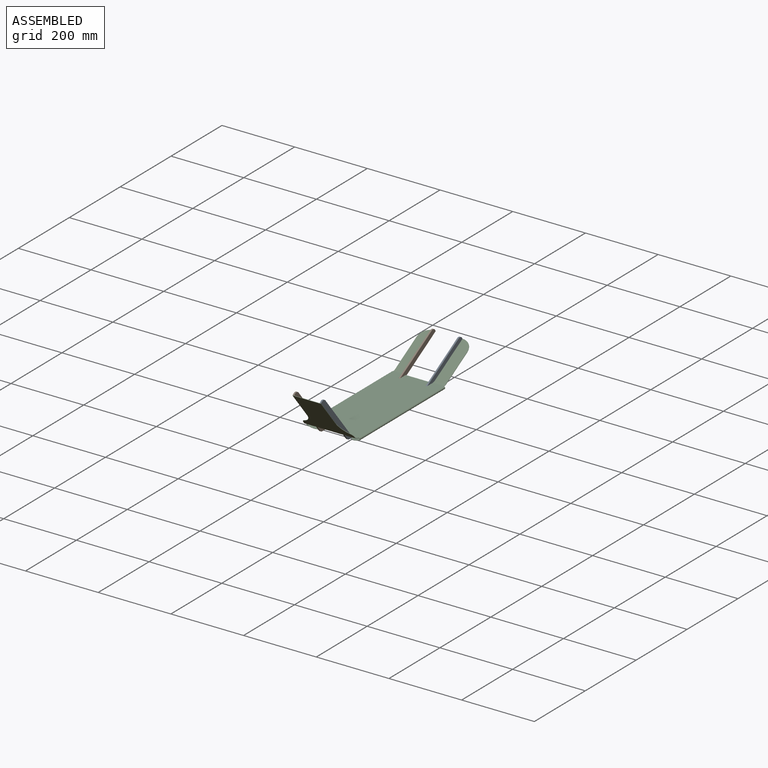
[diagram: assembled view]
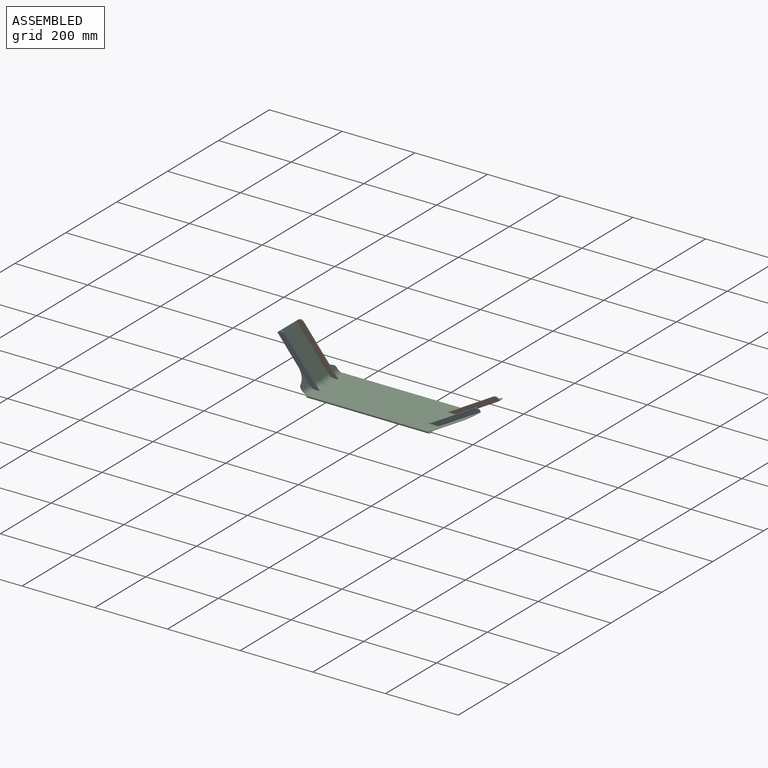
[diagram: assembled view, second angle]
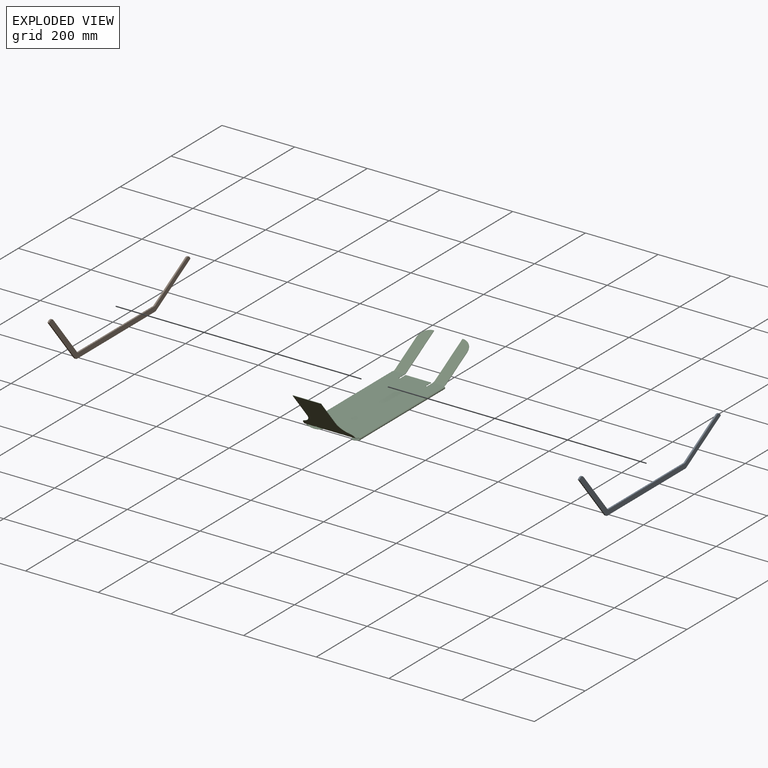
[diagram: exploded view]
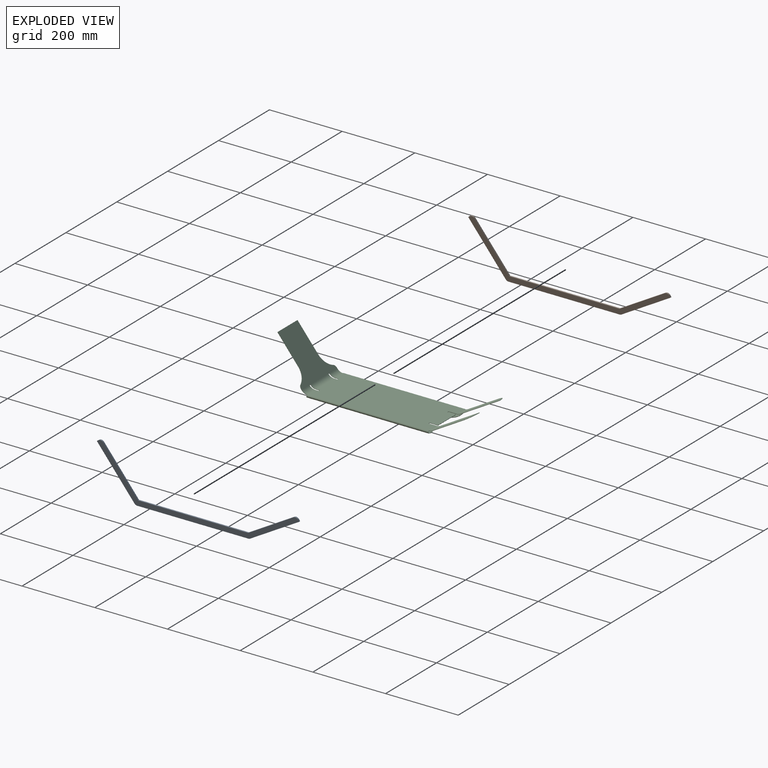
[diagram: exploded view, second angle]
ASSEMBLY  parts=3 mates=2
PART A: 14 faces, bbox 4x556.2x135.9 mm
  f0: plane 305.68x4mm, normal (0,0,-1), area 1222.7mm2, adj f1,f11,f12,f13
  f1: cylinder r=10mm len=5mm, axis (-1,0,0), area 20.9mm2, adj f0,f2,f12,f13
  f2: plane 134.51x77.66mm, normal (0,0.5,-0.87), area 621.3mm2, adj f1,f3,f12,f13
  f3: plane 4x3.46mm, normal (0,0.87,0.5), area 16mm2, adj f2,f4,f12,f13
  f4: cylinder r=10mm len=13.66mm, axis (-1,0,0), area 62.8mm2, adj f3,f5,f12,f13
  f5: plane 124.92x72.12mm, normal (0,-0.5,0.87), area 577mm2, adj f4,f6,f12,f13
  f6: plane 302.7x4mm, normal (0,0,1), area 1210.8mm2, adj f5,f7,f12,f13
  f7: plane 118.24x95.75mm, normal (0,0.78,0.63), area 608.6mm2, adj f6,f8,f12,f13
  f8: cylinder r=10mm len=14.06mm, axis (-1,0,0), area 62.8mm2, adj f7,f9,f12,f13
  f9: plane 4x3.11mm, normal (0,-0.63,0.78), area 16mm2, adj f8,f10,f12,f13
  f10: plane 127.49x103.24mm, normal (0,-0.78,-0.63), area 656.2mm2, adj f9,f11,f12,f13
  f11: cylinder r=10mm len=7.77mm, axis (-1,0,0), area 35.6mm2, adj f0,f10,f12,f13
  f12: plane 556.2x135.95mm, normal (1,0,0), area 8766.6mm2, adj f0,f1,f2,f3,f4,f5,f6,f7
  f13: plane 556.2x135.95mm, normal (-1,0,0), area 8766.6mm2, adj f0,f1,f2,f3,f4,f5,f6,f7
PART B: same geometry as A
PART C: 66 faces, bbox 147x557x131.2 mm
  f0: plane 78x0.78mm, normal (0,-0.63,0.78), area 78mm2, adj f5,f6,f62,f63
  f1: cylinder r=20mm len=70mm, axis (-1,0,0), area 1246.2mm2, adj f5,f12,f46,f51
  f2: cylinder r=20mm len=31mm, axis (-1,0,0), area 551.9mm2, adj f5,f12,f19,f47
  f3: cylinder r=20mm len=31mm, axis (-1,0,0), area 551.9mm2, adj f4,f5,f12,f50
  f4: plane 17.4x10.34mm, normal (-1,0,0), area 20.3mm2, adj f3,f5,f6,f25,f33,f65
  f5: plane 140x109.16mm, normal (0,-0.78,-0.63), area 12212.7mm2, adj f0,f1,f2,f3,f4,f19,f58,f59
  f6: plane 140x109.16mm, normal (0,0.78,0.63), area 12212.7mm2, adj f0,f4,f13,f18,f19,f25,f58,f59
  f7: plane 335.1x140mm, normal (0,0,1), area 46655mm2, adj f8,f13,f17,f18,f24,f25,f31,f37
  f8: plane 22.64x1mm, normal (-1,0,0), area 22.6mm2, adj f7,f12,f53,f57
  f9: plane 1x0.87mm, normal (0,0.87,0.5), area 1mm2, adj f10,f23,f41,f52
  f10: plane 107.94x62.32mm, normal (0,0.5,-0.87), area 3670.7mm2, adj f9,f11,f20,f41,f52
  f11: cylinder r=20mm len=31mm, axis (-1,0,0), area 324.6mm2, adj f10,f12,f20,f52
  f12: plane 335.1x140mm, normal (0,0,-1), area 46655mm2, adj f1,f2,f3,f8,f11,f16,f32,f36
  f13: cylinder r=19mm len=70mm, axis (-1,0,0), area 1183.9mm2, adj f6,f7,f46,f51
  f14: plane 1x0.87mm, normal (0,0.87,0.5), area 1mm2, adj f15,f21,f40,f49
  f15: plane 107.94x62.32mm, normal (0,-0.5,0.87), area 3670.7mm2, adj f14,f17,f22,f40,f49
  f16: cylinder r=20mm len=31mm, axis (-1,0,0), area 324.6mm2, adj f12,f21,f22,f49
  f17: cylinder r=19mm len=31mm, axis (-1,0,0), area 308.4mm2, adj f7,f15,f22,f49
  f18: cylinder r=19mm len=31mm, axis (-1,0,0), area 524.3mm2, adj f6,f7,f19,f47
  f19: plane 17.4x10.34mm, normal (1,0,0), area 20.3mm2, adj f2,f5,f6,f18,f29,f60
  f20: plane 91.96x50.87mm, normal (-1,0,0), area 104.9mm2, adj f10,f11,f23,f24,f34,f41
  f21: plane 107.94x62.32mm, normal (0,0.5,-0.87), area 3670.7mm2, adj f14,f16,f22,f40,f49
  f22: plane 91.96x50.87mm, normal (1,0,0), area 104.9mm2, adj f15,f16,f17,f21,f30,f40
  f23: plane 107.94x62.32mm, normal (0,-0.5,0.87), area 3670.7mm2, adj f9,f20,f24,f41,f52
  f24: cylinder r=19mm len=31mm, axis (-1,0,0), area 308.4mm2, adj f7,f20,f23,f52
  f25: cylinder r=19mm len=31mm, axis (-1,0,0), area 524.3mm2, adj f4,f6,f7,f50
  f26: plane 335.1x31.44mm, normal (-0.25,0,0.97), area 10607.7mm2, adj f27,f29,f30,f32,f42,f43
  f27: plane 285.1x0.97mm, normal (-0.97,0,-0.25), area 285.1mm2, adj f26,f28,f42,f43
  f28: plane 335.1x31.41mm, normal (0.25,0,-0.97), area 10596.7mm2, adj f27,f29,f30,f31,f42,f43
  f29: plane 10.28x8.78mm, normal (0,-1,0), area 16.3mm2, adj f19,f26,f28,f31,f32,f42
  f30: plane 10.28x8.78mm, normal (0,1,0), area 16.3mm2, adj f22,f26,f28,f31,f32,f43
  f31: cylinder r=3.5mm len=335.1mm, axis (0,1,0), area 3462.2mm2, adj f7,f28,f29,f30
  f32: cylinder r=2.5mm len=335.1mm, axis (0,1,0), area 2482.3mm2, adj f12,f26,f29,f30
  f33: plane 10.28x8.78mm, normal (0,-1,0), area 16.3mm2, adj f4,f36,f37,f38,f39,f44
  f34: plane 10.28x8.78mm, normal (0,1,0), area 16.3mm2, adj f20,f36,f37,f38,f39,f45
  f35: plane 285.1x0.97mm, normal (0.97,0,-0.25), area 285.1mm2, adj f38,f39,f44,f45
  f36: cylinder r=2.5mm len=335.1mm, axis (0,1,0), area 2482.3mm2, adj f12,f33,f34,f38
  f37: cylinder r=3.5mm len=335.1mm, axis (0,1,0), area 3462.2mm2, adj f7,f33,f34,f39
  f38: plane 335.1x31.44mm, normal (0.25,0,0.97), area 10607.7mm2, adj f33,f34,f35,f36,f44,f45
  f39: plane 335.1x31.41mm, normal (-0.25,0,-0.97), area 10596.7mm2, adj f33,f34,f35,f37,f44,f45
  f40: cylinder r=30mm len=30mm, axis (0,0.5,-0.87), area 47.1mm2, adj f14,f15,f21,f22
  f41: cylinder r=30mm len=30mm, axis (0,-0.5,0.87), area 47.1mm2, adj f9,f10,f20,f23
  f42: cylinder r=25mm len=25mm, axis (-0.25,0,0.97), area 39.3mm2, adj f26,f27,f28,f29
  f43: cylinder r=25mm len=25mm, axis (0.25,0,-0.97), area 39.3mm2, adj f26,f27,f28,f30
  f44: cylinder r=25mm len=25mm, axis (-0.25,0,-0.97), area 39.3mm2, adj f33,f35,f38,f39
  f45: cylinder r=25mm len=25mm, axis (0.25,0,0.97), area 39.3mm2, adj f34,f35,f38,f39
  f46: plane 25.31x8.04mm, normal (1,0,0), area 27.1mm2, adj f1,f7,f12,f13,f56,f59
  f47: plane 25.31x8.04mm, normal (-1,0,0), area 27.1mm2, adj f2,f7,f12,f18,f56,f59
  f48: plane 22.64x1mm, normal (1,0,0), area 22.6mm2, adj f7,f12,f55,f57
  f49: plane 140.58x65.87mm, normal (-1,0,0), area 157.5mm2, adj f7,f12,f14,f15,f16,f17,f21,f55
  f50: plane 25.31x8.04mm, normal (1,0,0), area 27.1mm2, adj f3,f7,f12,f25,f54,f58
  f51: plane 25.31x8.04mm, normal (-1,0,0), area 27.1mm2, adj f1,f7,f12,f13,f54,f58
  f52: plane 140.58x65.87mm, normal (1,0,0), area 157.5mm2, adj f7,f9,f10,f11,f12,f23,f24,f53
  f53: plane 4x1mm, normal (0,1,0), area 4mm2, adj f7,f8,f12,f52
  f54: plane 4x1mm, normal (0,-1,0), area 4mm2, adj f7,f12,f50,f51
  f55: plane 4x1mm, normal (0,1,0), area 4mm2, adj f7,f12,f48,f49
  f56: plane 4x1mm, normal (0,-1,0), area 4mm2, adj f7,f12,f46,f47
  f57: plane 70x1mm, normal (0,1,0), area 70mm2, adj f7,f8,f12,f48
  f58: plane 4x0.78mm, normal (0,0.63,-0.78), area 4mm2, adj f5,f6,f50,f51
  f59: plane 4x0.78mm, normal (0,0.63,-0.78), area 4mm2, adj f5,f6,f46,f47
  f60: cylinder r=10mm len=7.74mm, axis (0,0.78,0.63), area 11.6mm2, adj f5,f6,f19,f61
  f61: cylinder r=41.9mm len=30.44mm, axis (0,0.78,0.63), area 48.5mm2, adj f5,f6,f60,f62
  f62: plane 70.57x57.42mm, normal (1,0,0), area 90mm2, adj f0,f5,f6,f61
  f63: plane 70.57x57.42mm, normal (-1,0,0), area 90mm2, adj f0,f5,f6,f64
  f64: cylinder r=41.9mm len=30.44mm, axis (0,0.78,0.63), area 48.5mm2, adj f5,f6,f63,f65
  f65: cylinder r=10mm len=7.74mm, axis (0,0.78,0.63), area 11.6mm2, adj f4,f5,f6,f64
PLACE A t=(-398.02,563.16,96.35)mm
PLACE B t=(-472.02,563.16,96.35)mm
PLACE C t=(-433.02,360.8,74.76)mm
MATE fastened A.f12 <-> C.f49  axis (1,0,0) through (-394.02,823.38,139.76)mm
MATE fastened B.f13 <-> C.f52  axis (-1,0,0) through (-472.02,823.38,139.76)mm
